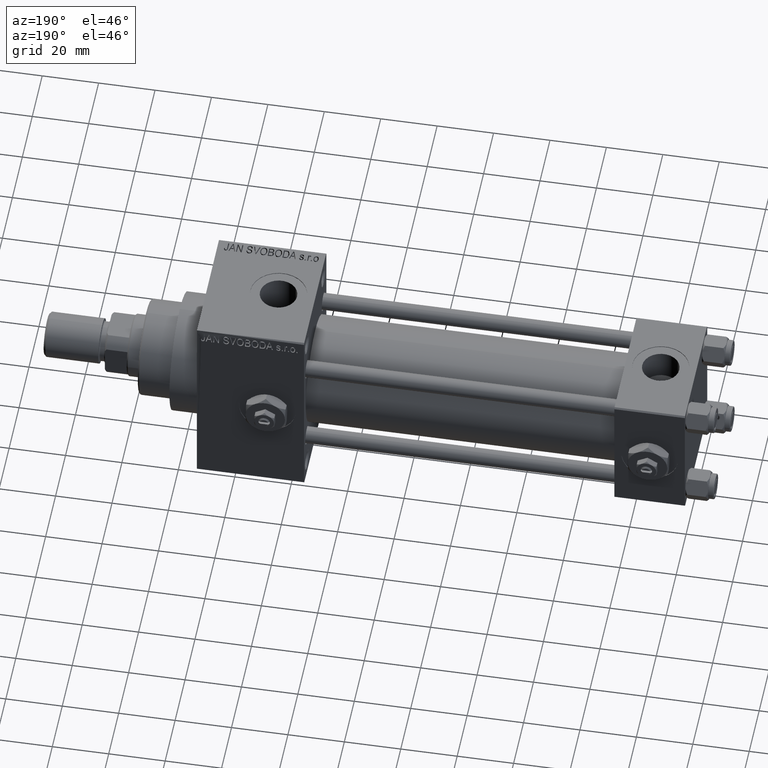
[diagram: clean part render]
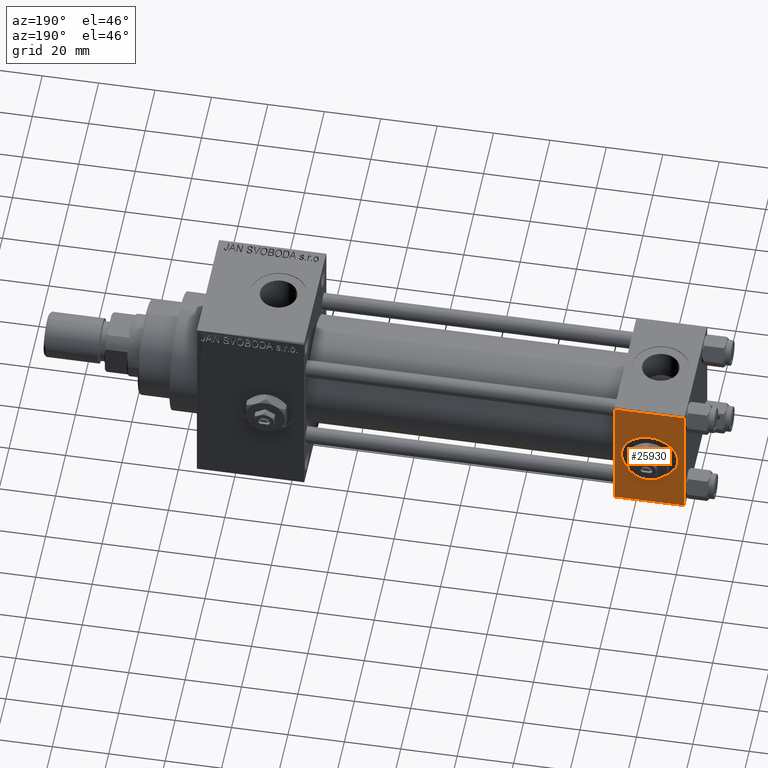
[diagram: same view with one face highlighted and labeled with its STEP entity id]
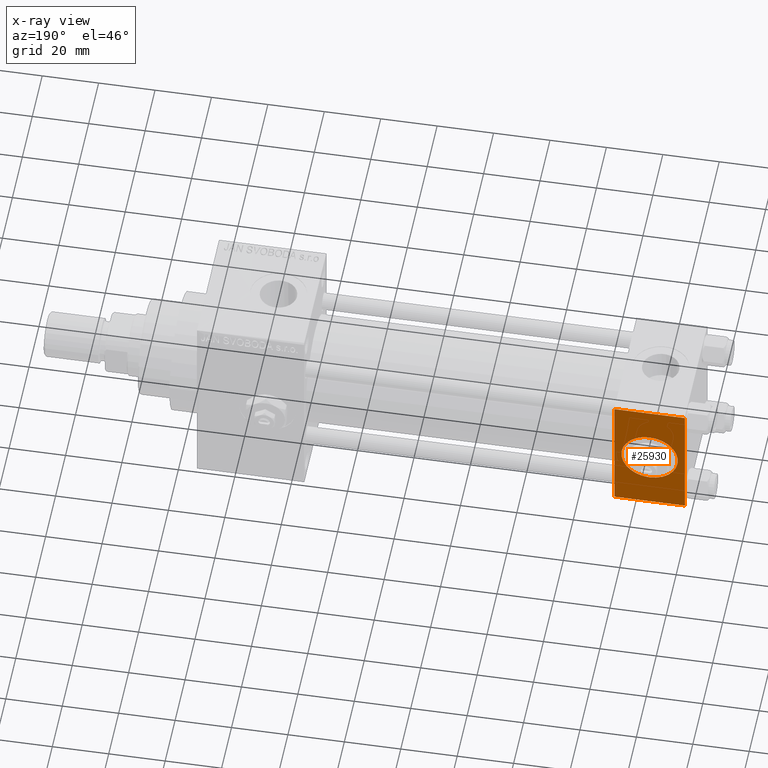
[diagram: x-ray of the same camera — body ghosted, the highlighted face saturated]
A machine part, auxiliary view. The second image highlights one B-rep face of the part: STEP entity #25930.
The next image is the same camera in x-ray: the body ghosted, the highlighted face saturated — about 0% of this face is hidden behind the body in this view.
In plain terms, the highlighted planar face has unit normal (0, 1, 0).
Its self-contained STEP definition (entity closure, byte-faithful):
#145 = CARTESIAN_POINT ( 'NONE',  ( 25.00000000000000000, 22.50000000000000000, 21.99999999999999645 ) ) ;
#864 = CIRCLE ( 'NONE', #30522, 9.999999999999996447 ) ;
#1229 = FACE_BOUND ( 'NONE', #47533, .T. ) ;
#3935 = DIRECTION ( 'NONE',  ( 0.000000000000000000, 1.000000000000000000, 0.000000000000000000 ) ) ;
#5193 = DIRECTION ( 'NONE',  ( 0.000000000000000000, 0.000000000000000000, -1.000000000000000000 ) ) ;
#5283 = VECTOR ( 'NONE', #5193, 1000.000000000000000 ) ;
#6766 = EDGE_CURVE ( 'NONE', #30766, #28769, #864, .T. ) ;
#7193 = DIRECTION ( 'NONE',  ( -1.000000000000000000, 0.000000000000000000, 0.000000000000000000 ) ) ;
#8021 = CARTESIAN_POINT ( 'NONE',  ( 25.00000000000000000, 22.50000000000000000, 22.50000000000000355 ) ) ;
#9832 = ORIENTED_EDGE ( 'NONE', *, *, #6766, .F. ) ;
#10250 = CARTESIAN_POINT ( 'NONE',  ( 12.50000000000000000, 22.50000000000000000, 9.999999999999996447 ) ) ;
#11787 = FACE_OUTER_BOUND ( 'NONE', #33948, .T. ) ;
#11910 = VERTEX_POINT ( 'NONE', #12166 ) ;
#12166 = CARTESIAN_POINT ( 'NONE',  ( 0.000000000000000000, 22.50000000000000000, 21.99999999999999645 ) ) ;
#14151 = EDGE_CURVE ( 'NONE', #28111, #33111, #38079, .T. ) ;
#15812 = DIRECTION ( 'NONE',  ( 0.000000000000000000, -0.000000000000000000, 1.000000000000000000 ) ) ;
#16124 = CARTESIAN_POINT ( 'NONE',  ( 0.000000000000000000, 22.50000000000000000, 22.50000000000000355 ) ) ;
#16692 = DIRECTION ( 'NONE',  ( 0.000000000000000000, 1.000000000000000000, 0.000000000000000000 ) ) ;
#19177 = ORIENTED_EDGE ( 'NONE', *, *, #49511, .T. ) ;
#19257 = DIRECTION ( 'NONE',  ( 0.000000000000000000, 0.000000000000000000, 1.000000000000000000 ) ) ;
#19389 = LINE ( 'NONE', #16124, #48360 ) ;
#19542 = ORIENTED_EDGE ( 'NONE', *, *, #48445, .T. ) ;
#19779 = VECTOR ( 'NONE', #29807, 1000.000000000000000 ) ;
#20088 = CARTESIAN_POINT ( 'NONE',  ( 12.50000000000000178, 22.50000000000000000, -9.999999999999996447 ) ) ;
#23005 = CARTESIAN_POINT ( 'NONE',  ( 25.00000000000000000, 22.50000000000000000, 21.99999999999999645 ) ) ;
#24856 = CARTESIAN_POINT ( 'NONE',  ( 25.00000000000000000, 22.50000000000000000, -21.99999999999998224 ) ) ;
#25930 = ADVANCED_FACE ( 'NONE', ( #1229, #11787 ), #27117, .T. ) ;
#27117 = PLANE ( 'NONE',  #44797 ) ;
#28111 = VERTEX_POINT ( 'NONE', #47309 ) ;
#28166 = AXIS2_PLACEMENT_3D ( 'NONE', #42108, #3935, #19257 ) ;
#28769 = VERTEX_POINT ( 'NONE', #10250 ) ;
#29807 = DIRECTION ( 'NONE',  ( 1.000000000000000000, 0.000000000000000000, 0.000000000000000000 ) ) ;
#30522 = AXIS2_PLACEMENT_3D ( 'NONE', #35776, #16692, #32022 ) ;
#30559 = LINE ( 'NONE', #23005, #19779 ) ;
#30704 = ORIENTED_EDGE ( 'NONE', *, *, #41941, .F. ) ;
#30766 = VERTEX_POINT ( 'NONE', #20088 ) ;
#32022 = DIRECTION ( 'NONE',  ( 0.000000000000000000, 0.000000000000000000, 1.000000000000000000 ) ) ;
#32973 = CIRCLE ( 'NONE', #28166, 9.999999999999996447 ) ;
#33111 = VERTEX_POINT ( 'NONE', #49034 ) ;
#33948 = EDGE_LOOP ( 'NONE', ( #19542, #49238, #30704, #19177 ) ) ;
#34900 = DIRECTION ( 'NONE',  ( -0.000000000000000000, 1.000000000000000000, 0.000000000000000000 ) ) ;
#35776 = CARTESIAN_POINT ( 'NONE',  ( 12.50000000000000000, 22.50000000000000000, 0.000000000000000000 ) ) ;
#36146 = EDGE_CURVE ( 'NONE', #28769, #30766, #32973, .T. ) ;
#37084 = VERTEX_POINT ( 'NONE', #145 ) ;
#38079 = LINE ( 'NONE', #24856, #48370 ) ;
#38873 = LINE ( 'NONE', #39606, #5283 ) ;
#39606 = CARTESIAN_POINT ( 'NONE',  ( 25.00000000000000000, 22.50000000000000000, 22.50000000000000355 ) ) ;
#41941 = EDGE_CURVE ( 'NONE', #11910, #33111, #19389, .T. ) ;
#42108 = CARTESIAN_POINT ( 'NONE',  ( 12.50000000000000000, 22.50000000000000000, 0.000000000000000000 ) ) ;
#42239 = DIRECTION ( 'NONE',  ( 0.000000000000000000, 0.000000000000000000, -1.000000000000000000 ) ) ;
#44797 = AXIS2_PLACEMENT_3D ( 'NONE', #8021, #34900, #15812 ) ;
#47309 = CARTESIAN_POINT ( 'NONE',  ( 25.00000000000000000, 22.50000000000000000, -21.99999999999996803 ) ) ;
#47533 = EDGE_LOOP ( 'NONE', ( #49640, #9832 ) ) ;
#48360 = VECTOR ( 'NONE', #42239, 1000.000000000000000 ) ;
#48370 = VECTOR ( 'NONE', #7193, 1000.000000000000000 ) ;
#48445 = EDGE_CURVE ( 'NONE', #37084, #28111, #38873, .T. ) ;
#49034 = CARTESIAN_POINT ( 'NONE',  ( 0.000000000000000000, 22.50000000000000000, -21.99999999999996803 ) ) ;
#49238 = ORIENTED_EDGE ( 'NONE', *, *, #14151, .T. ) ;
#49511 = EDGE_CURVE ( 'NONE', #11910, #37084, #30559, .T. ) ;
#49640 = ORIENTED_EDGE ( 'NONE', *, *, #36146, .F. ) ;